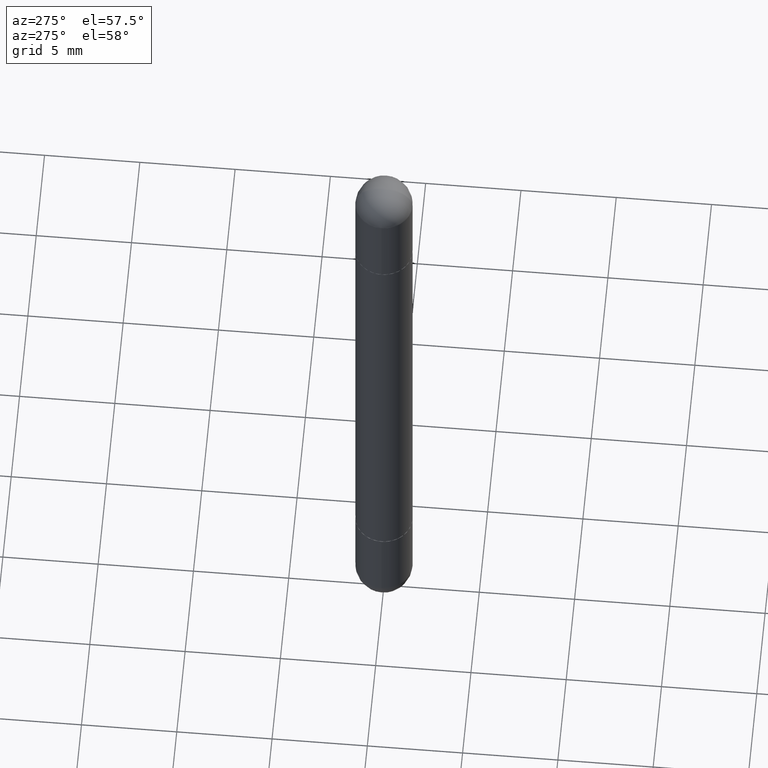
[diagram: clean part render]
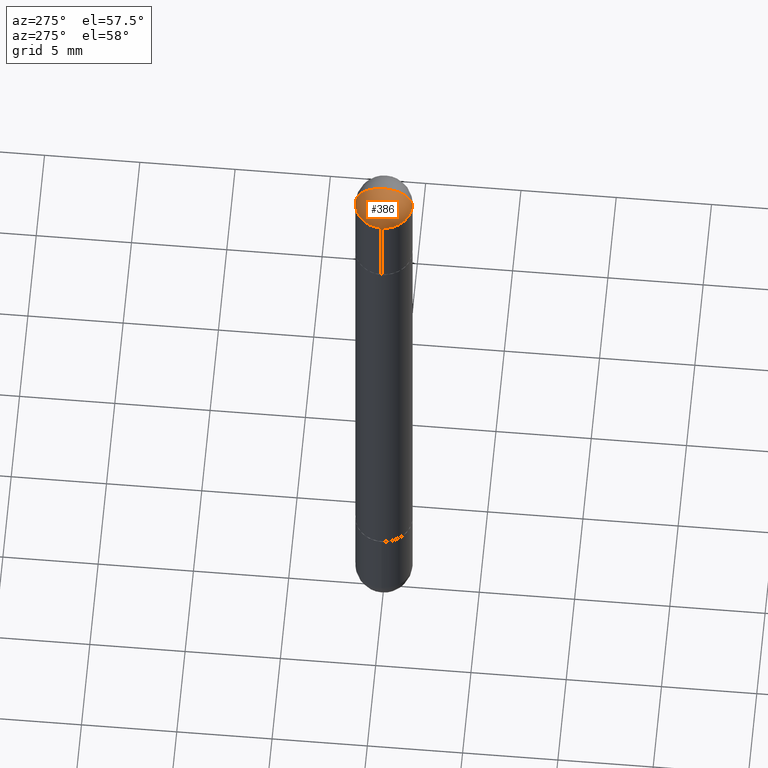
[diagram: same view with one face highlighted and labeled with its STEP entity id]
A machine part, auxiliary view. The second image highlights one B-rep face of the part: STEP entity #386.
In plain terms, the highlighted spherical surface has radius 1.4999 mm.
Its self-contained STEP definition (entity closure, byte-faithful):
#40 = AXIS2_PLACEMENT_3D ( 'NONE', #531, #41, #801 ) ;
#41 = DIRECTION ( 'NONE',  ( -1.000000000000000000, 6.982962677686265922E-15, 4.883557194083112340E-29 ) ) ;
#91 = CARTESIAN_POINT ( 'NONE',  ( 3.514260947928350449E-29, -5.017433257984542594E-15, -0.05905000000000028976 ) ) ;
#96 = CARTESIAN_POINT ( 'NONE',  ( 3.514260947928350449E-29, -5.017433257984542594E-15, -0.05905000000000028976 ) ) ;
#135 = CIRCLE ( 'NONE', #589, 0.05905000000000001914 ) ;
#149 = AXIS2_PLACEMENT_3D ( 'NONE', #96, #370, #735 ) ;
#155 = CARTESIAN_POINT ( 'NONE',  ( 3.183141170014464762E-29, -5.491615626124592102E-15, -0.05905000000000028976 ) ) ;
#168 = FACE_OUTER_BOUND ( 'NONE', #773, .T. ) ;
#180 = CARTESIAN_POINT ( 'NONE',  ( 3.183141170014464762E-29, -5.491615626124592102E-15, -0.05905000000000028976 ) ) ;
#209 = DIRECTION ( 'NONE',  ( 6.860497997771530774E-15, 1.000000000000000000, 0.000000000000000000 ) ) ;
#271 = CARTESIAN_POINT ( 'NONE',  ( -4.051124067683763770E-16, -0.05905000000000539678, -0.05905000000000049099 ) ) ;
#276 = VERTEX_POINT ( 'NONE', #711 ) ;
#278 = CIRCLE ( 'NONE', #745, 0.05905000000000025506 ) ;
#299 = SPHERICAL_SURFACE ( 'NONE', #715, 0.05905000000000025506 ) ;
#341 = EDGE_CURVE ( 'NONE', #276, #490, #758, .T. ) ;
#361 = CARTESIAN_POINT ( 'NONE',  ( -0.05905000000000001914, -4.303062891628101254E-15, -0.05905000000000028976 ) ) ;
#369 = VERTEX_POINT ( 'NONE', #361 ) ;
#370 = DIRECTION ( 'NONE',  ( 2.445468806185136597E-29, -3.491481338843145583E-15, 1.000000000000000000 ) ) ;
#372 = ORIENTED_EDGE ( 'NONE', *, *, #379, .T. ) ;
#379 = EDGE_CURVE ( 'NONE', #490, #369, #771, .T. ) ;
#386 = ADVANCED_FACE ( 'NONE', ( #168 ), #299, .T. ) ;
#428 = ORIENTED_EDGE ( 'NONE', *, *, #598, .F. ) ;
#430 = DIRECTION ( 'NONE',  ( 6.982962677686265922E-15, 1.000000000000000000, 3.469747663417762014E-15 ) ) ;
#455 = DIRECTION ( 'NONE',  ( 1.000000000000000000, -6.982962677686270655E-15, 0.000000000000000000 ) ) ;
#490 = VERTEX_POINT ( 'NONE', #635 ) ;
#531 = CARTESIAN_POINT ( 'NONE',  ( 3.183141170014464762E-29, -5.491615626124592102E-15, -0.05905000000000028976 ) ) ;
#589 = AXIS2_PLACEMENT_3D ( 'NONE', #91, #595, #455 ) ;
#595 = DIRECTION ( 'NONE',  ( 2.445468806185136597E-29, -3.491481338843145583E-15, 1.000000000000000000 ) ) ;
#598 = EDGE_CURVE ( 'NONE', #276, #614, #278, .T. ) ;
#604 = EDGE_CURVE ( 'NONE', #369, #614, #135, .T. ) ;
#612 = ORIENTED_EDGE ( 'NONE', *, *, #341, .T. ) ;
#614 = VERTEX_POINT ( 'NONE', #271 ) ;
#635 = CARTESIAN_POINT ( 'NONE',  ( 4.123439461174084467E-16, 0.05904999999999487742, -0.05905000000000008159 ) ) ;
#655 = DIRECTION ( 'NONE',  ( 1.000000000000000000, -6.860497997771530774E-15, -4.840798879624142912E-29 ) ) ;
#672 = ORIENTED_EDGE ( 'NONE', *, *, #604, .T. ) ;
#711 = CARTESIAN_POINT ( 'NONE',  ( 3.330070981488499955E-29, -5.694171829508798064E-15, -3.414809992080329023E-17 ) ) ;
#715 = AXIS2_PLACEMENT_3D ( 'NONE', #180, #798, #430 ) ;
#735 = DIRECTION ( 'NONE',  ( 1.000000000000000000, -6.982962677686270655E-15, 0.000000000000000000 ) ) ;
#745 = AXIS2_PLACEMENT_3D ( 'NONE', #155, #655, #209 ) ;
#758 = CIRCLE ( 'NONE', #40, 0.05905000000000025506 ) ;
#771 = CIRCLE ( 'NONE', #149, 0.05905000000000001914 ) ;
#773 = EDGE_LOOP ( 'NONE', ( #428, #612, #372, #672 ) ) ;
#798 = DIRECTION ( 'NONE',  ( 1.000000000000000000, -6.982962677686265922E-15, -4.883557194083112340E-29 ) ) ;
#801 = DIRECTION ( 'NONE',  ( -6.982962677686266711E-15, -1.000000000000000000, 0.000000000000000000 ) ) ;